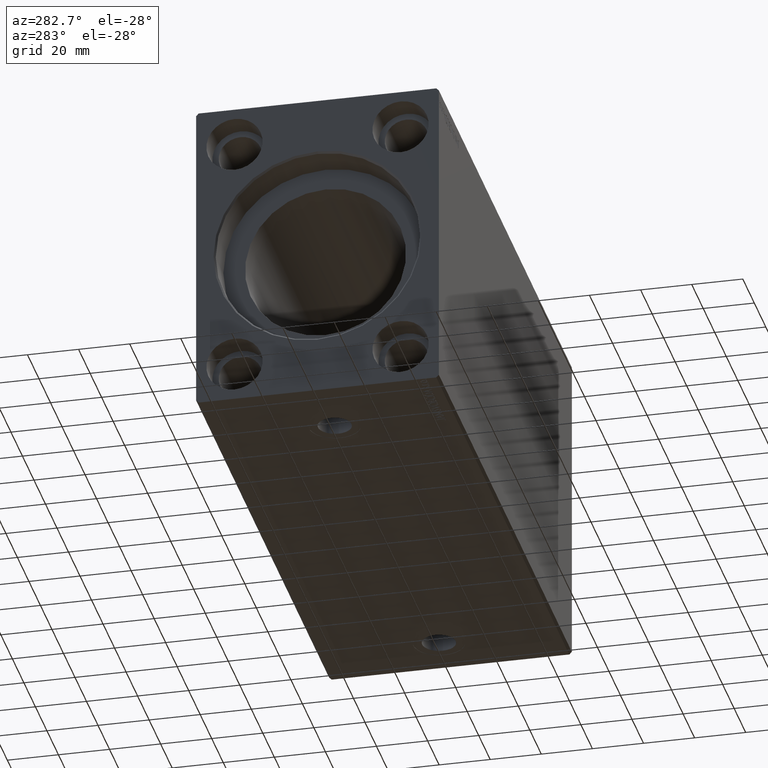
[diagram: clean part render]
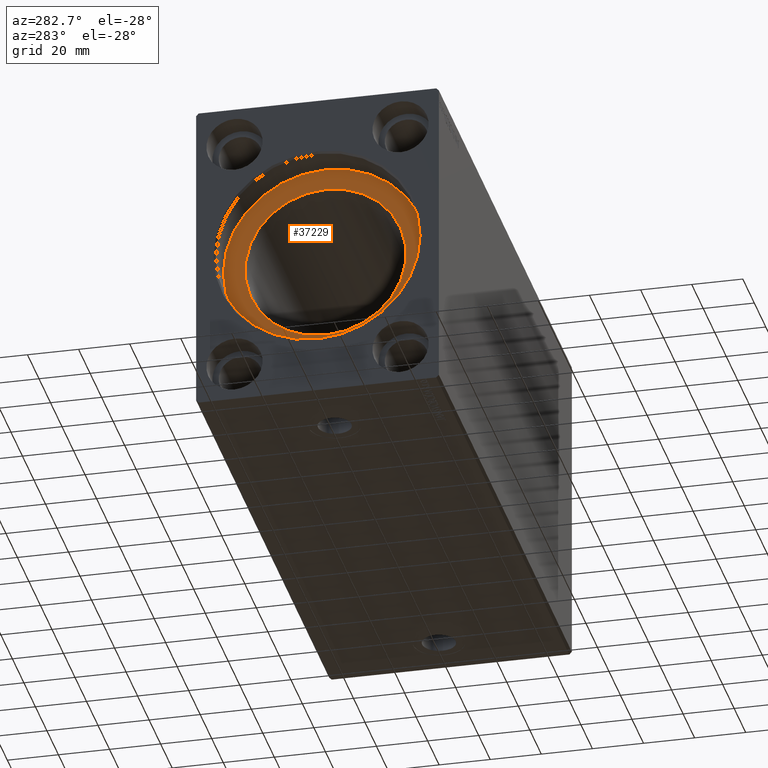
[diagram: same view with one face highlighted and labeled with its STEP entity id]
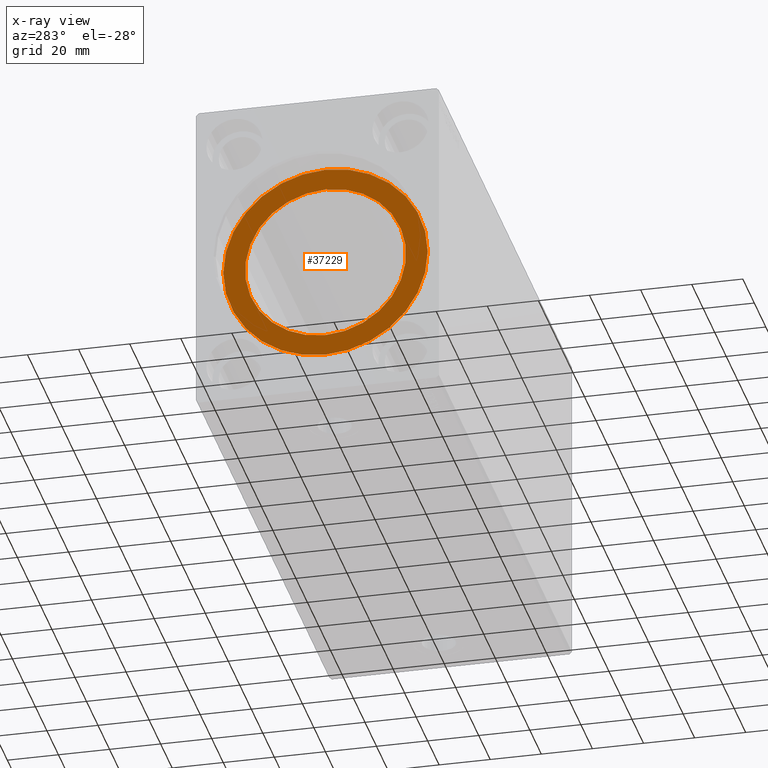
[diagram: x-ray of the same camera — body ghosted, the highlighted face saturated]
A machine part, auxiliary view. The second image highlights one B-rep face of the part: STEP entity #37229.
The next image is the same camera in x-ray: the body ghosted, the highlighted face saturated — about 0% of this face is hidden behind the body in this view.
In plain terms, the highlighted planar face has unit normal (-1, 0, 0).
Its self-contained STEP definition (entity closure, byte-faithful):
#4510 = CIRCLE ( 'NONE', #20978, 31.50000000000000000 ) ;
#4831 = DIRECTION ( 'NONE',  ( -1.000000000000000000, 0.000000000000000000, 0.000000000000000000 ) ) ;
#5433 = FACE_OUTER_BOUND ( 'NONE', #5780, .T. ) ;
#5780 = EDGE_LOOP ( 'NONE', ( #22783, #40509 ) ) ;
#5784 = DIRECTION ( 'NONE',  ( 0.000000000000000000, 0.000000000000000000, 1.000000000000000000 ) ) ;
#6734 = VERTEX_POINT ( 'NONE', #26681 ) ;
#7838 = CARTESIAN_POINT ( 'NONE',  ( 14.00000000000001243, 0.000000000000000000, 0.000000000000000000 ) ) ;
#8436 = DIRECTION ( 'NONE',  ( -1.000000000000000000, 0.000000000000000000, 0.000000000000000000 ) ) ;
#8746 = CARTESIAN_POINT ( 'NONE',  ( 14.00000000000000000, 0.000000000000000000, 40.00000000000000000 ) ) ;
#11960 = EDGE_CURVE ( 'NONE', #36247, #20088, #18085, .T. ) ;
#12311 = FACE_BOUND ( 'NONE', #31529, .T. ) ;
#13234 = ORIENTED_EDGE ( 'NONE', *, *, #11960, .F. ) ;
#15102 = DIRECTION ( 'NONE',  ( 0.000000000000000000, 0.000000000000000000, 1.000000000000000000 ) ) ;
#17521 = DIRECTION ( 'NONE',  ( 0.000000000000000000, 0.000000000000000000, 1.000000000000000000 ) ) ;
#18085 = CIRCLE ( 'NONE', #42092, 31.50000000000000000 ) ;
#18978 = EDGE_CURVE ( 'NONE', #6734, #38179, #28444, .T. ) ;
#20088 = VERTEX_POINT ( 'NONE', #25884 ) ;
#20184 = AXIS2_PLACEMENT_3D ( 'NONE', #29398, #41882, #5784 ) ;
#20411 = AXIS2_PLACEMENT_3D ( 'NONE', #38074, #8436, #15102 ) ;
#20858 = CARTESIAN_POINT ( 'NONE',  ( 14.00000000000001243, 0.000000000000000000, 0.000000000000000000 ) ) ;
#20978 = AXIS2_PLACEMENT_3D ( 'NONE', #7838, #4831, #17521 ) ;
#22783 = ORIENTED_EDGE ( 'NONE', *, *, #42386, .T. ) ;
#23204 = AXIS2_PLACEMENT_3D ( 'NONE', #23756, #33426, #24184 ) ;
#23238 = EDGE_CURVE ( 'NONE', #20088, #36247, #4510, .T. ) ;
#23756 = CARTESIAN_POINT ( 'NONE',  ( 14.00000000000000000, 0.000000000000000000, 0.000000000000000000 ) ) ;
#24184 = DIRECTION ( 'NONE',  ( 0.000000000000000000, 0.000000000000000000, 1.000000000000000000 ) ) ;
#25405 = PLANE ( 'NONE',  #20411 ) ;
#25884 = CARTESIAN_POINT ( 'NONE',  ( 14.00000000000001243, 3.857637417314162689E-15, -31.50000000000000000 ) ) ;
#26681 = CARTESIAN_POINT ( 'NONE',  ( 14.00000000000000000, 4.898587196589413026E-15, -40.00000000000000000 ) ) ;
#27713 = CARTESIAN_POINT ( 'NONE',  ( 14.00000000000001243, 0.000000000000000000, 31.50000000000000000 ) ) ;
#28116 = DIRECTION ( 'NONE',  ( 0.000000000000000000, 0.000000000000000000, 1.000000000000000000 ) ) ;
#28444 = CIRCLE ( 'NONE', #20184, 40.00000000000000000 ) ;
#29398 = CARTESIAN_POINT ( 'NONE',  ( 14.00000000000000000, 0.000000000000000000, 0.000000000000000000 ) ) ;
#31529 = EDGE_LOOP ( 'NONE', ( #13234, #31937 ) ) ;
#31937 = ORIENTED_EDGE ( 'NONE', *, *, #23238, .F. ) ;
#33426 = DIRECTION ( 'NONE',  ( -1.000000000000000000, 0.000000000000000000, 0.000000000000000000 ) ) ;
#36247 = VERTEX_POINT ( 'NONE', #27713 ) ;
#37229 = ADVANCED_FACE ( 'NONE', ( #12311, #5433 ), #25405, .T. ) ;
#38074 = CARTESIAN_POINT ( 'NONE',  ( 14.00000000000000000, 0.000000000000000000, 0.000000000000000000 ) ) ;
#38179 = VERTEX_POINT ( 'NONE', #8746 ) ;
#39768 = CIRCLE ( 'NONE', #23204, 40.00000000000000000 ) ;
#39780 = DIRECTION ( 'NONE',  ( -1.000000000000000000, 0.000000000000000000, 0.000000000000000000 ) ) ;
#40509 = ORIENTED_EDGE ( 'NONE', *, *, #18978, .T. ) ;
#41882 = DIRECTION ( 'NONE',  ( -1.000000000000000000, 0.000000000000000000, 0.000000000000000000 ) ) ;
#42092 = AXIS2_PLACEMENT_3D ( 'NONE', #20858, #39780, #28116 ) ;
#42386 = EDGE_CURVE ( 'NONE', #38179, #6734, #39768, .T. ) ;